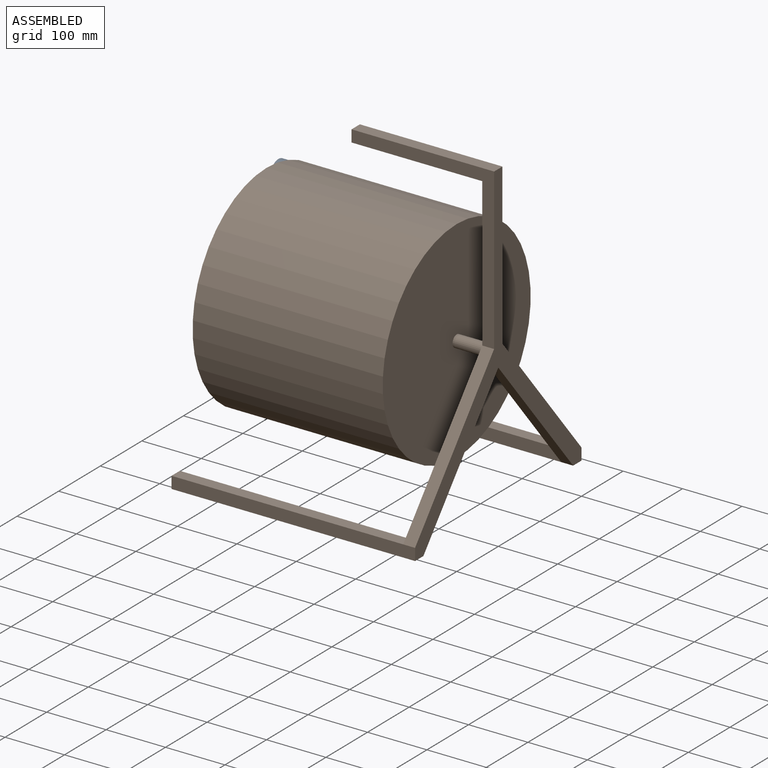
[diagram: assembled view]
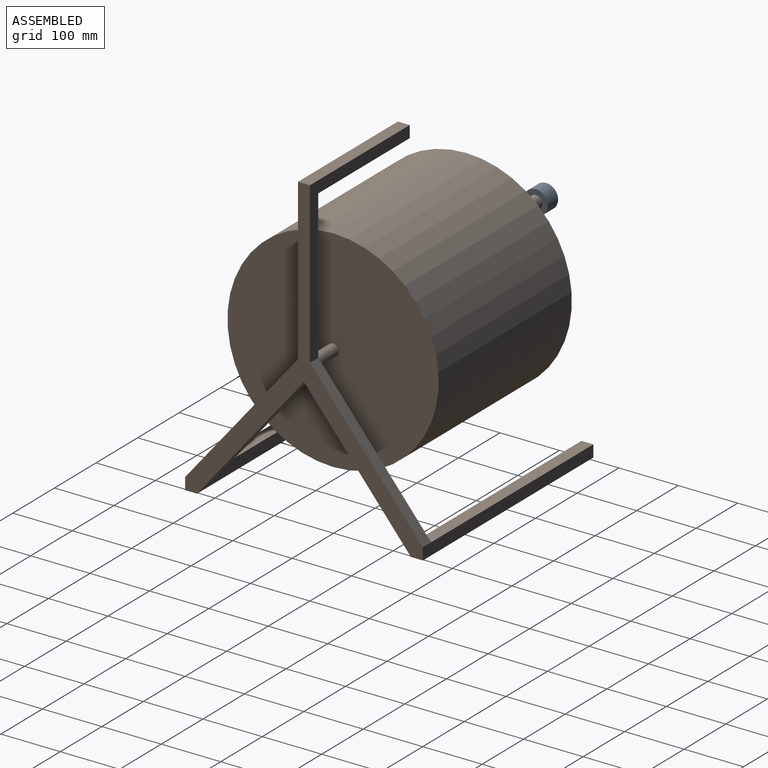
[diagram: assembled view, second angle]
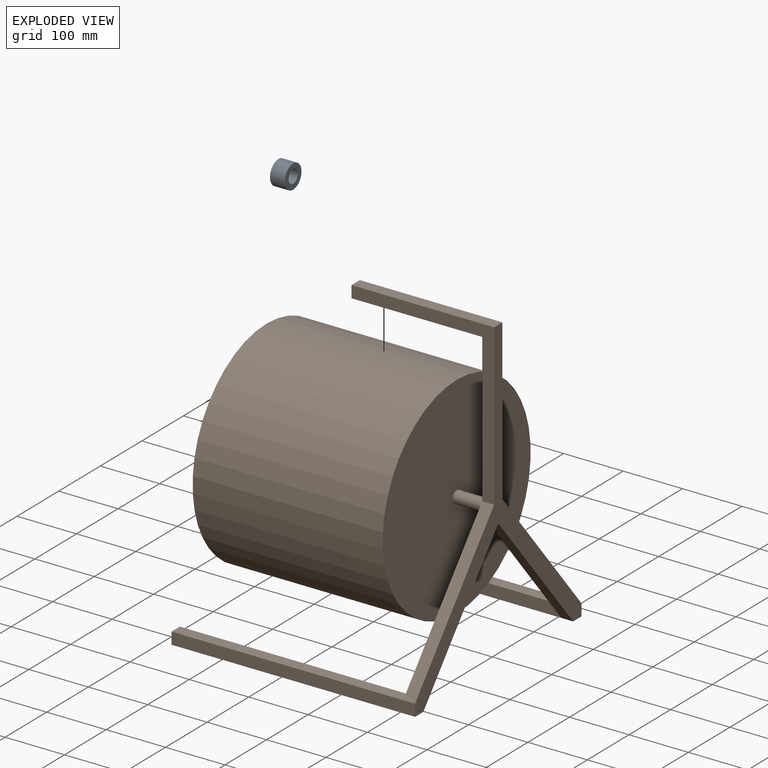
[diagram: exploded view]
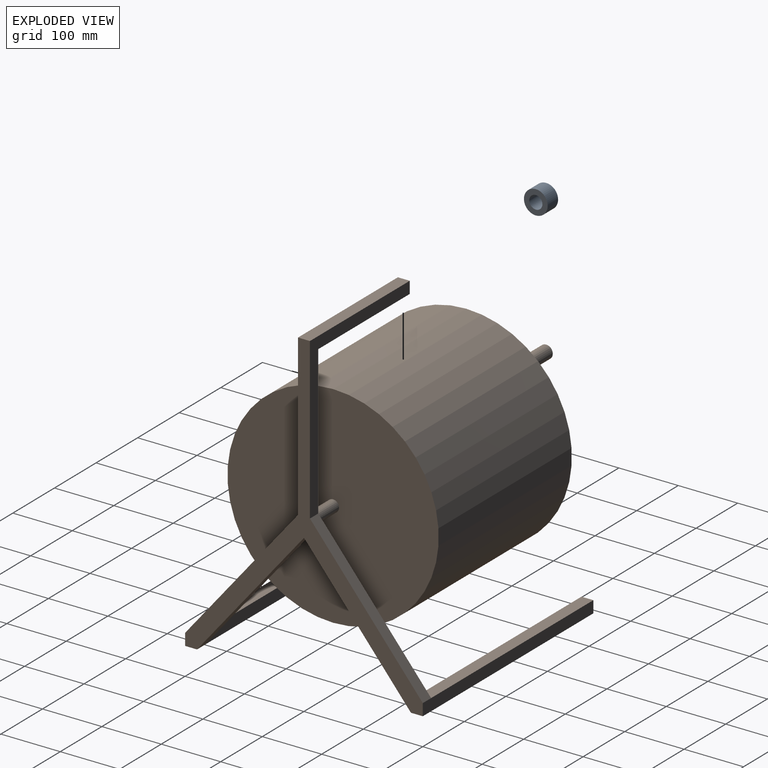
[diagram: exploded view, second angle]
ASSEMBLY  parts=2 mates=2
PART A: 4 faces, bbox 40x25x40 mm
  f0: cylinder r=11.08mm len=25mm, axis (0,1,0), area 1740.8mm2, adj f2,f3
  f1: cylinder r=20mm len=40mm, axis (0,1,0), area 3141.6mm2, adj f2,f3
  f2: plane 40x40mm, normal (0,-1,0), area 870.8mm2, adj f0,f1
  f3: plane 40x40mm, normal (0,1,0), area 870.8mm2, adj f0,f1
PART B: 27 faces, bbox 400x440x520 mm
  f0: plane 500x400mm, normal (0,1,0), area 20964.8mm2, adj f1,f2,f5,f6,f9,f10,f13,f15
  f1: plane 270x240mm, normal (-1,0,0), area 9800mm2, adj f0,f2,f11,f12,f13,f14
  f2: plane 230x190mm, normal (-0.77,0,0.64), area 5966.6mm2, adj f0,f1,f3,f12
  f3: plane 410x20mm, normal (-1,0,0), area 8200mm2, adj f2,f4,f12,f18,f20
  f4: plane 410x20mm, normal (0,0,-1), area 8200mm2, adj f3,f5,f12,f19,f20
  f5: plane 217.89x180mm, normal (0.77,0,-0.64), area 5652.5mm2, adj f0,f4,f6,f12
  f6: plane 217.89x180mm, normal (-0.77,0,-0.64), area 5652.5mm2, adj f0,f5,f7,f12
  f7: plane 410x20mm, normal (0,0,-1), area 8200mm2, adj f6,f8,f12,f16,f17
  f8: plane 410x20mm, normal (1,0,0), area 8200mm2, adj f7,f9,f12,f15,f17
  f9: plane 230x190mm, normal (0.77,0,0.64), area 5966.6mm2, adj f0,f8,f10,f12
  f10: plane 270x240mm, normal (1,0,0), area 9800mm2, adj f0,f9,f11,f12,f13,f14
  f11: plane 240x20mm, normal (0,0,1), area 4800mm2, adj f1,f10,f12,f14
  f12: plane 520x400mm, normal (0,-1,0), area 22478.9mm2, adj f1,f2,f3,f4,f5,f6,f7,f8
  f13: plane 220x20mm, normal (0,0,-1), area 4400mm2, adj f0,f1,f10,f14
  f14: plane 20x20mm, normal (0,1,0), area 400mm2, adj f1,f10,f11,f13
  f15: plane 390x20mm, normal (0,0,1), area 7800mm2, adj f0,f8,f16,f17
  f16: plane 390x20mm, normal (-1,0,0), area 7800mm2, adj f0,f7,f15,f17
  f17: plane 20x20mm, normal (0,1,0), area 400mm2, adj f7,f8,f15,f16
  f18: plane 390x20mm, normal (0,0,1), area 7800mm2, adj f0,f3,f19,f20
  f19: plane 390x20mm, normal (1,0,0), area 7800mm2, adj f0,f4,f18,f20
  f20: plane 20x20mm, normal (0,1,0), area 400mm2, adj f3,f4,f18,f19
  f21: cylinder r=10mm len=50mm, axis (0,-1,0), area 3141.6mm2, adj f0,f24
  f22: cylinder r=177.8mm len=355.6mm, axis (0,-1,0), area 357488.1mm2, adj f23,f24
  f23: plane 355.6x355.6mm, normal (0,1,0), area 98928.8mm2, adj f22,f25
  f24: plane 355.6x355.6mm, normal (0,-1,0), area 99000.5mm2, adj f21,f22
  f25: cylinder r=11.08mm len=50mm, axis (0,-1,0), area 3481.6mm2, adj f23,f26
  f26: plane 22.16x22.16mm, normal (0,1,0), area 385.8mm2, adj f25
PLACE A rot(axis=(0,0,1),90deg) t=(2739.54,167.91,0)mm
PLACE B rot(axis=(0,0,1),90deg) t=(2739.54,167.91,0)mm
MATE cylindrical B.f25 <-> A.f0  axis (1,0,0) through (2324.54,457.55,349.51)mm
MATE planar A.f0 <-> B.f25  axis (-1,0,0) through (2299.54,457.55,349.51)mm
